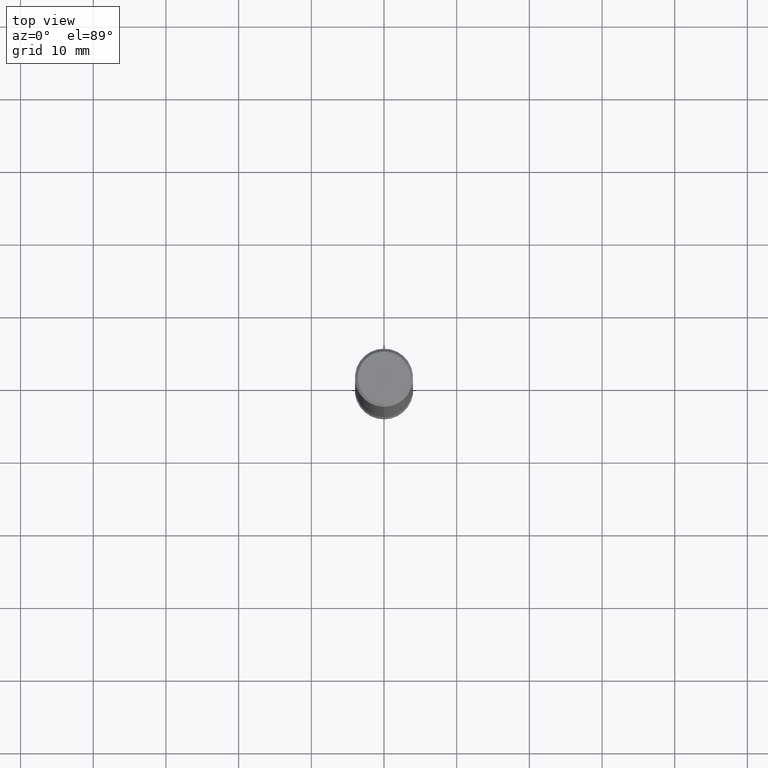
[diagram: clean part render]
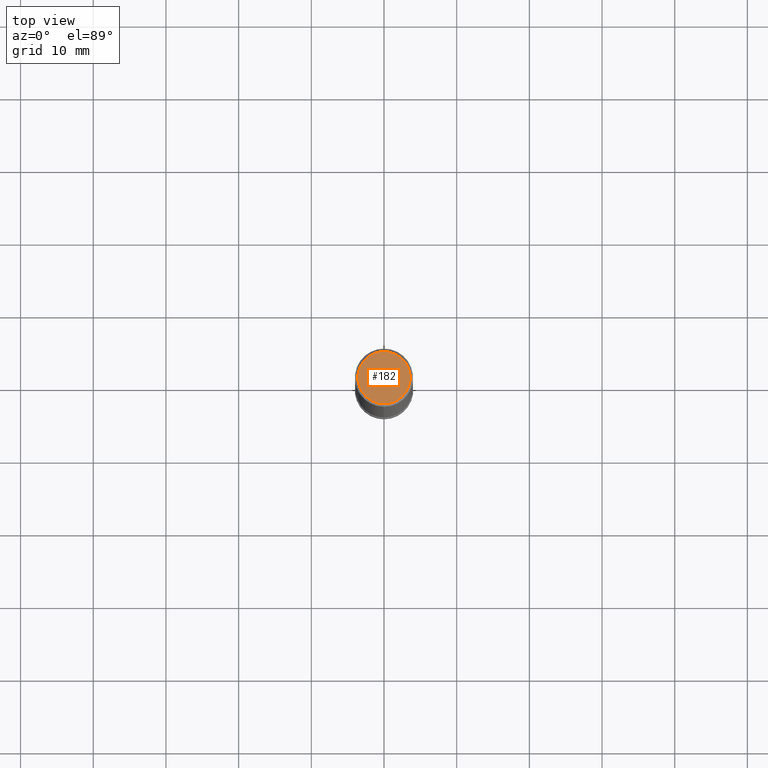
[diagram: same view with one face highlighted and labeled with its STEP entity id]
A machine part, top view. The second image highlights one B-rep face of the part: STEP entity #182.
In plain terms, the highlighted planar face has unit normal (-0, 0, 1).
Its self-contained STEP definition (entity closure, byte-faithful):
#170=EDGE_CURVE('',#194,#190,#320,.T.);
#182=ADVANCED_FACE('',(#333),#334,.T.);
#190=VERTEX_POINT('',#343);
#192=EDGE_CURVE('',#190,#194,#345,.T.);
#194=VERTEX_POINT('',#347);
#320=CIRCLE('',#486,3.6);
#333=FACE_OUTER_BOUND('',#501,.T.);
#334=PLANE('',#502);
#343=CARTESIAN_POINT('',(4.40858287376056E-016,-3.6,0.0));
#345=CIRCLE('',#516,3.6);
#347=CARTESIAN_POINT('',(0.0,3.6,0.0));
#486=AXIS2_PLACEMENT_3D('',#678,#679,#680);
#501=EDGE_LOOP('',(#691,#692));
#502=AXIS2_PLACEMENT_3D('',#693,#694,#695);
#516=AXIS2_PLACEMENT_3D('',#705,#706,#707);
#678=CARTESIAN_POINT('',(0.0,0.0,0.0));
#679=DIRECTION('',(0.0,0.0,-1.0));
#680=DIRECTION('',(0.0,1.0,0.0));
#691=ORIENTED_EDGE('',*,*,#170,.F.);
#692=ORIENTED_EDGE('',*,*,#192,.F.);
#693=CARTESIAN_POINT('',(0.0,1.8,0.0));
#694=DIRECTION('',(-0.0,0.0,1.0));
#695=DIRECTION('',(0.0,-1.0,0.0));
#705=CARTESIAN_POINT('',(0.0,0.0,0.0));
#706=DIRECTION('',(0.0,0.0,-1.0));
#707=DIRECTION('',(0.0,1.0,0.0));